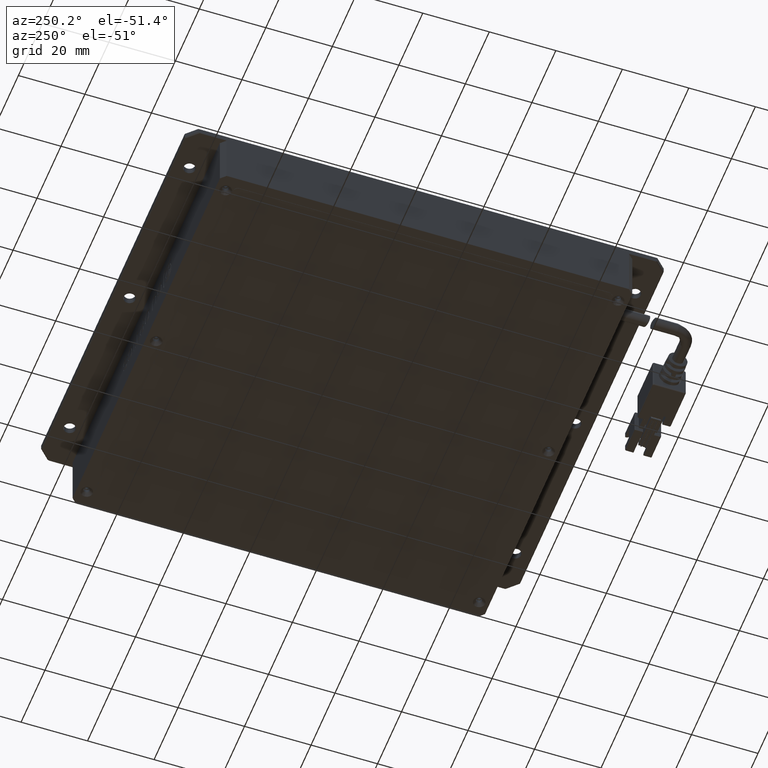
[diagram: clean part render]
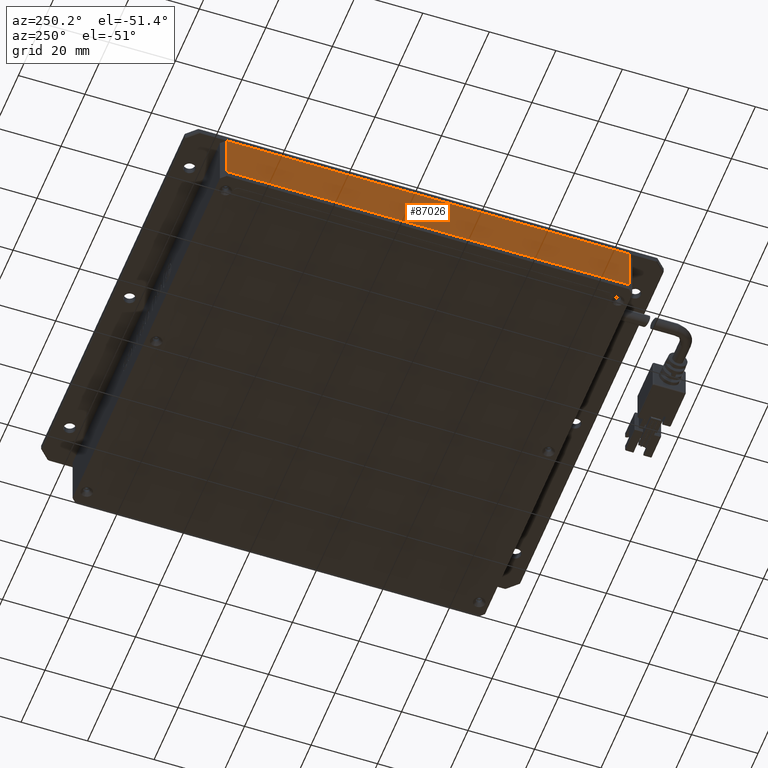
[diagram: same view with one face highlighted and labeled with its STEP entity id]
A machine part, auxiliary view. The second image highlights one B-rep face of the part: STEP entity #87026.
In plain terms, the highlighted planar face has unit normal (1, 0, 0).
Its self-contained STEP definition (entity closure, byte-faithful):
#6287 = DIRECTION ( 'NONE',  ( 0.0000000000000000000, -0.0000000000000000000, -1.000000000000000000 ) ) ;
#6514 = EDGE_CURVE ( 'NONE', #70271, #45231, #7147, .T. ) ;
#7147 = LINE ( 'NONE', #53052, #48651 ) ;
#8727 = EDGE_CURVE ( 'NONE', #67591, #45231, #51908, .T. ) ;
#10377 = VECTOR ( 'NONE', #76296, 1000.000000000000000 ) ;
#13100 = ORIENTED_EDGE ( 'NONE', *, *, #6514, .T. ) ;
#18583 = FACE_OUTER_BOUND ( 'NONE', #30206, .T. ) ;
#19398 = CARTESIAN_POINT ( 'NONE',  ( -63.35509736540663500, -49.61034746086289000, -1.637578961322105900E-011 ) ) ;
#19764 = LINE ( 'NONE', #54683, #58826 ) ;
#20188 = DIRECTION ( 'NONE',  ( 0.0000000000000000000, -1.000000000000000000, -0.0000000000000000000 ) ) ;
#21512 = CARTESIAN_POINT ( 'NONE',  ( -63.35509736540663500, -51.11034746086289000, 13.99999999998362900 ) ) ;
#27261 = CARTESIAN_POINT ( 'NONE',  ( -63.35509736540663500, 71.38965253913710300, 13.99999999998362900 ) ) ;
#27709 = EDGE_CURVE ( 'NONE', #98473, #67591, #19764, .T. ) ;
#29330 = DIRECTION ( 'NONE',  ( 0.0000000000000000000, 0.0000000000000000000, -1.000000000000000000 ) ) ;
#30206 = EDGE_LOOP ( 'NONE', ( #75885, #50531, #13100, #94560 ) ) ;
#42411 = AXIS2_PLACEMENT_3D ( 'NONE', #21512, #76132, #29330 ) ;
#43020 = LINE ( 'NONE', #66931, #84593 ) ;
#44095 = CARTESIAN_POINT ( 'NONE',  ( -63.35509736540663500, 71.38965253913710300, -1.637058544279312900E-011 ) ) ;
#45231 = VERTEX_POINT ( 'NONE', #44095 ) ;
#47784 = EDGE_CURVE ( 'NONE', #70271, #98473, #43020, .T. ) ;
#48651 = VECTOR ( 'NONE', #6287, 1000.000000000000000 ) ;
#50531 = ORIENTED_EDGE ( 'NONE', *, *, #47784, .F. ) ;
#51908 = LINE ( 'NONE', #68429, #10377 ) ;
#53052 = CARTESIAN_POINT ( 'NONE',  ( -63.35509736540665000, 71.38965253913708900, 13.99999999998362900 ) ) ;
#54683 = CARTESIAN_POINT ( 'NONE',  ( -63.35509736540663500, -49.61034746086289000, 13.99999999998362900 ) ) ;
#58826 = VECTOR ( 'NONE', #93683, 1000.000000000000000 ) ;
#66931 = CARTESIAN_POINT ( 'NONE',  ( -63.35509736540663500, -51.11034746086289000, 13.99999999998362900 ) ) ;
#67591 = VERTEX_POINT ( 'NONE', #19398 ) ;
#68429 = CARTESIAN_POINT ( 'NONE',  ( -63.35509736540663500, 72.88965253913710300, -1.637058544279312900E-011 ) ) ;
#70271 = VERTEX_POINT ( 'NONE', #27261 ) ;
#72984 = CARTESIAN_POINT ( 'NONE',  ( -63.35509736540663500, -49.61034746086289000, 13.99999999998362900 ) ) ;
#75885 = ORIENTED_EDGE ( 'NONE', *, *, #27709, .F. ) ;
#76132 = DIRECTION ( 'NONE',  ( 1.000000000000000000, 0.0000000000000000000, 0.0000000000000000000 ) ) ;
#76296 = DIRECTION ( 'NONE',  ( 0.0000000000000000000, 1.000000000000000000, 0.0000000000000000000 ) ) ;
#84593 = VECTOR ( 'NONE', #20188, 1000.000000000000000 ) ;
#87026 = ADVANCED_FACE ( 'NONE', ( #18583 ), #91528, .F. ) ;
#91528 = PLANE ( 'NONE',  #42411 ) ;
#93683 = DIRECTION ( 'NONE',  ( 0.0000000000000000000, 0.0000000000000000000, -1.000000000000000000 ) ) ;
#94560 = ORIENTED_EDGE ( 'NONE', *, *, #8727, .F. ) ;
#98473 = VERTEX_POINT ( 'NONE', #72984 ) ;